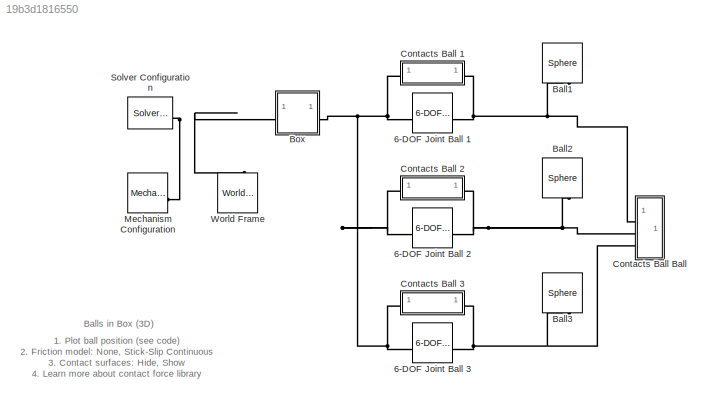
MODEL slx_19b3d1816550
KIND model
CONFIG AbsTol = 1e-5
CONFIG EnableMultiTasking = on
CONFIG FixedStep = auto
CONFIG MaxStep = 1e-2
CONFIG MinStep = auto
CONFIG RelTol = 1e-4
CONFIG SampleTimeConstraint = Unconstrained
CONFIG SolverName = ode23t
CONFIG StartFcn = tic;
CONFIG StartTime = 0.0
CONFIG StopFcn = Elapsed_Sim_Time = toc;\ndisp(['Elapsed Sim Time = ' num2str(Elapsed_Sim_Time)]);\n
CONFIG StopTime = 20
WORKSPACE source: MATLAB code (in-file)
WORKSPACE code: box.length = 8;
WORKSPACE code: box.width = 6;
WORKSPACE code: box.height = 4;
WORKSPACE code: box.wall_thickness = 0.005;
WORKSPACE code: ball.radius = 0.5;
WORKSPACE code: ball.density = 1000;
BLOCK [Reference] 6-DOF Joint Ball 1  REF=sm_lib/Joints/6-DOF Joint
  SourceBlock = sm_lib/Joints/6-DOF Joint
  SourceType = 6-DOF Joint
BLOCK [Reference] 6-DOF Joint Ball 2  REF=sm_lib/Joints/6-DOF Joint
  SourceBlock = sm_lib/Joints/6-DOF Joint
  SourceType = 6-DOF Joint
BLOCK [Reference] 6-DOF Joint Ball 3  REF=sm_lib/Joints/6-DOF Joint
  SourceBlock = sm_lib/Joints/6-DOF Joint
  SourceType = 6-DOF Joint
BLOCK [Reference] Ball1  REF=Parts_Lib/Sphere
  NameLocation = left
  SourceBlock = Parts_Lib/Sphere
  SourceType = Sphere with Markings
  Tag = CustomStyle
BLOCK [Reference] Ball2  REF=Parts_Lib/Sphere
  NameLocation = left
  SourceBlock = Parts_Lib/Sphere
  SourceType = Sphere with Markings
  Tag = CustomStyle
BLOCK [Reference] Ball3  REF=Parts_Lib/Sphere
  NameLocation = left
  SourceBlock = Parts_Lib/Sphere
  SourceType = Sphere with Markings
  Tag = CustomStyle
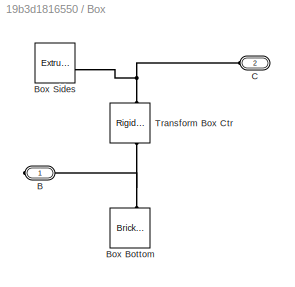
BLOCK [SubSystem] Box
  Tag = CustomStyle
BLOCK [PMIOPort] Box/B
  NameLocation = top
  Side = Right
BLOCK [Reference] Box/Box Bottom  REF=sm_lib/Body Elements/Brick Solid
  NameLocation = right
  SourceBlock = sm_lib/Body Elements/Brick Solid
  SourceType = Brick Solid
BLOCK [Reference] Box/Box Sides  REF=sm_lib/Body Elements/Extruded Solid
  SourceBlock = sm_lib/Body Elements/Extruded Solid
  SourceType = Extruded Solid
BLOCK [PMIOPort] Box/C
  NameLocation = top
  Port = 2
  Side = Left
BLOCK [Reference] Box/Transform Box Ctr  REF=sm_lib/Frames and
Transforms/Rigid
Transform
  NameLocation = right
  SourceBlock = sm_lib/Frames and\nTransforms/Rigid\nTransform
  SourceType = Rigid\nTransform
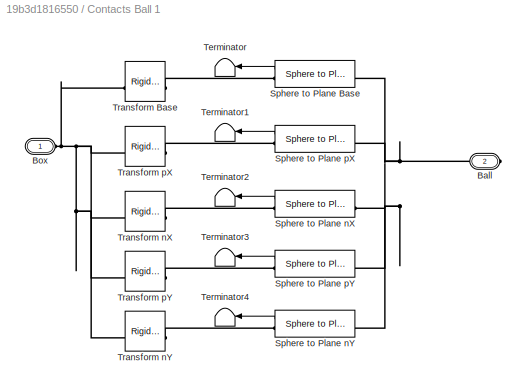
BLOCK [SubSystem] Contacts Ball 1
  NameLocation = top
BLOCK [PMIOPort] Contacts Ball 1/Ball
  Port = 2
  Side = Right
BLOCK [PMIOPort] Contacts Ball 1/Box
  Side = Left
BLOCK [Reference] Contacts Ball 1/Sphere to Plane Base  REF=Contact_Forces_Lib/3D/Sphere to Plane Force
  SourceBlock = Contact_Forces_Lib/3D/Sphere to Plane Force
  SourceProductName = Simscape Multibody Contact Forces Library
  SourceType = Sphere to Plane Force
BLOCK [Reference] Contacts Ball 1/Sphere to Plane nX  REF=Contact_Forces_Lib/3D/Sphere to Plane Force
  SourceBlock = Contact_Forces_Lib/3D/Sphere to Plane Force
  SourceProductName = Simscape Multibody Contact Forces Library
  SourceType = Sphere to Plane Force
BLOCK [Reference] Contacts Ball 1/Sphere to Plane nY  REF=Contact_Forces_Lib/3D/Sphere to Plane Force
  SourceBlock = Contact_Forces_Lib/3D/Sphere to Plane Force
  SourceProductName = Simscape Multibody Contact Forces Library
  SourceType = Sphere to Plane Force
BLOCK [Reference] Contacts Ball 1/Sphere to Plane pX  REF=Contact_Forces_Lib/3D/Sphere to Plane Force
  SourceBlock = Contact_Forces_Lib/3D/Sphere to Plane Force
  SourceProductName = Simscape Multibody Contact Forces Library
  SourceType = Sphere to Plane Force
BLOCK [Reference] Contacts Ball 1/Sphere to Plane pY  REF=Contact_Forces_Lib/3D/Sphere to Plane Force
  SourceBlock = Contact_Forces_Lib/3D/Sphere to Plane Force
  SourceProductName = Simscape Multibody Contact Forces Library
  SourceType = Sphere to Plane Force
BLOCK [Terminator] Contacts Ball 1/Terminator
BLOCK [Terminator] Contacts Ball 1/Terminator1
BLOCK [Terminator] Contacts Ball 1/Terminator2
BLOCK [Terminator] Contacts Ball 1/Terminator3
BLOCK [Terminator] Contacts Ball 1/Terminator4
BLOCK [Reference] Contacts Ball 1/Transform Base  REF=sm_lib/Frames and
Transforms/Rigid
Transform
  SourceBlock = sm_lib/Frames and\nTransforms/Rigid\nTransform
  SourceType = Rigid\nTransform
BLOCK [Reference] Contacts Ball 1/Transform nX  REF=sm_lib/Frames and
Transforms/Rigid
Transform
  SourceBlock = sm_lib/Frames and\nTransforms/Rigid\nTransform
  SourceType = Rigid\nTransform
BLOCK [Reference] Contacts Ball 1/Transform nY  REF=sm_lib/Frames and
Transforms/Rigid
Transform
  SourceBlock = sm_lib/Frames and\nTransforms/Rigid\nTransform
  SourceType = Rigid\nTransform
BLOCK [Reference] Contacts Ball 1/Transform pX  REF=sm_lib/Frames and
Transforms/Rigid
Transform
  SourceBlock = sm_lib/Frames and\nTransforms/Rigid\nTransform
  SourceType = Rigid\nTransform
BLOCK [Reference] Contacts Ball 1/Transform pY  REF=sm_lib/Frames and
Transforms/Rigid
Transform
  SourceBlock = sm_lib/Frames and\nTransforms/Rigid\nTransform
  SourceType = Rigid\nTransform
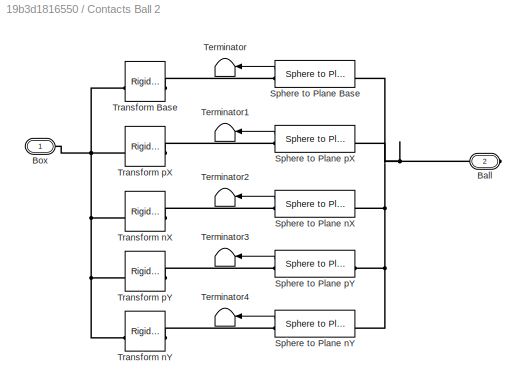
BLOCK [SubSystem] Contacts Ball 2
  NameLocation = top
BLOCK [PMIOPort] Contacts Ball 2/Ball
  Port = 2
  Side = Right
BLOCK [PMIOPort] Contacts Ball 2/Box
  Side = Left
BLOCK [Reference] Contacts Ball 2/Sphere to Plane Base  REF=Contact_Forces_Lib/3D/Sphere to Plane Force
  SourceBlock = Contact_Forces_Lib/3D/Sphere to Plane Force
  SourceProductName = Simscape Multibody Contact Forces Library
  SourceType = Sphere to Plane Force
BLOCK [Reference] Contacts Ball 2/Sphere to Plane nX  REF=Contact_Forces_Lib/3D/Sphere to Plane Force
  SourceBlock = Contact_Forces_Lib/3D/Sphere to Plane Force
  SourceProductName = Simscape Multibody Contact Forces Library
  SourceType = Sphere to Plane Force
BLOCK [Reference] Contacts Ball 2/Sphere to Plane nY  REF=Contact_Forces_Lib/3D/Sphere to Plane Force
  SourceBlock = Contact_Forces_Lib/3D/Sphere to Plane Force
  SourceProductName = Simscape Multibody Contact Forces Library
  SourceType = Sphere to Plane Force
BLOCK [Reference] Contacts Ball 2/Sphere to Plane pX  REF=Contact_Forces_Lib/3D/Sphere to Plane Force
  SourceBlock = Contact_Forces_Lib/3D/Sphere to Plane Force
  SourceProductName = Simscape Multibody Contact Forces Library
  SourceType = Sphere to Plane Force
BLOCK [Reference] Contacts Ball 2/Sphere to Plane pY  REF=Contact_Forces_Lib/3D/Sphere to Plane Force
  SourceBlock = Contact_Forces_Lib/3D/Sphere to Plane Force
  SourceProductName = Simscape Multibody Contact Forces Library
  SourceType = Sphere to Plane Force
BLOCK [Terminator] Contacts Ball 2/Terminator
BLOCK [Terminator] Contacts Ball 2/Terminator1
BLOCK [Terminator] Contacts Ball 2/Terminator2
BLOCK [Terminator] Contacts Ball 2/Terminator3
BLOCK [Terminator] Contacts Ball 2/Terminator4
BLOCK [Reference] Contacts Ball 2/Transform Base  REF=sm_lib/Frames and
Transforms/Rigid
Transform
  SourceBlock = sm_lib/Frames and\nTransforms/Rigid\nTransform
  SourceType = Rigid\nTransform
BLOCK [Reference] Contacts Ball 2/Transform nX  REF=sm_lib/Frames and
Transforms/Rigid
Transform
  SourceBlock = sm_lib/Frames and\nTransforms/Rigid\nTransform
  SourceType = Rigid\nTransform
BLOCK [Reference] Contacts Ball 2/Transform nY  REF=sm_lib/Frames and
Transforms/Rigid
Transform
  SourceBlock = sm_lib/Frames and\nTransforms/Rigid\nTransform
  SourceType = Rigid\nTransform
BLOCK [Reference] Contacts Ball 2/Transform pX  REF=sm_lib/Frames and
Transforms/Rigid
Transform
  SourceBlock = sm_lib/Frames and\nTransforms/Rigid\nTransform
  SourceType = Rigid\nTransform
BLOCK [Reference] Contacts Ball 2/Transform pY  REF=sm_lib/Frames and
Transforms/Rigid
Transform
  SourceBlock = sm_lib/Frames and\nTransforms/Rigid\nTransform
  SourceType = Rigid\nTransform
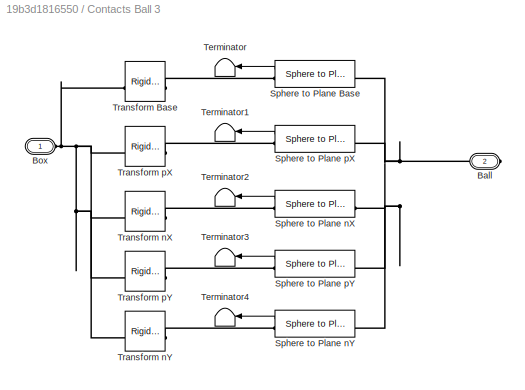
BLOCK [SubSystem] Contacts Ball 3
  NameLocation = top
BLOCK [PMIOPort] Contacts Ball 3/Ball
  Port = 2
  Side = Right
BLOCK [PMIOPort] Contacts Ball 3/Box
  Side = Left
BLOCK [Reference] Contacts Ball 3/Sphere to Plane Base  REF=Contact_Forces_Lib/3D/Sphere to Plane Force
  SourceBlock = Contact_Forces_Lib/3D/Sphere to Plane Force
  SourceProductName = Simscape Multibody Contact Forces Library
  SourceType = Sphere to Plane Force
BLOCK [Reference] Contacts Ball 3/Sphere to Plane nX  REF=Contact_Forces_Lib/3D/Sphere to Plane Force
  SourceBlock = Contact_Forces_Lib/3D/Sphere to Plane Force
  SourceProductName = Simscape Multibody Contact Forces Library
  SourceType = Sphere to Plane Force
BLOCK [Reference] Contacts Ball 3/Sphere to Plane nY  REF=Contact_Forces_Lib/3D/Sphere to Plane Force
  SourceBlock = Contact_Forces_Lib/3D/Sphere to Plane Force
  SourceProductName = Simscape Multibody Contact Forces Library
  SourceType = Sphere to Plane Force
BLOCK [Reference] Contacts Ball 3/Sphere to Plane pX  REF=Contact_Forces_Lib/3D/Sphere to Plane Force
  SourceBlock = Contact_Forces_Lib/3D/Sphere to Plane Force
  SourceProductName = Simscape Multibody Contact Forces Library
  SourceType = Sphere to Plane Force
BLOCK [Reference] Contacts Ball 3/Sphere to Plane pY  REF=Contact_Forces_Lib/3D/Sphere to Plane Force
  SourceBlock = Contact_Forces_Lib/3D/Sphere to Plane Force
  SourceProductName = Simscape Multibody Contact Forces Library
  SourceType = Sphere to Plane Force
BLOCK [Terminator] Contacts Ball 3/Terminator
BLOCK [Terminator] Contacts Ball 3/Terminator1
BLOCK [Terminator] Contacts Ball 3/Terminator2
BLOCK [Terminator] Contacts Ball 3/Terminator3
BLOCK [Terminator] Contacts Ball 3/Terminator4
BLOCK [Reference] Contacts Ball 3/Transform Base  REF=sm_lib/Frames and
Transforms/Rigid
Transform
  SourceBlock = sm_lib/Frames and\nTransforms/Rigid\nTransform
  SourceType = Rigid\nTransform
BLOCK [Reference] Contacts Ball 3/Transform nX  REF=sm_lib/Frames and
Transforms/Rigid
Transform
  SourceBlock = sm_lib/Frames and\nTransforms/Rigid\nTransform
  SourceType = Rigid\nTransform
BLOCK [Reference] Contacts Ball 3/Transform nY  REF=sm_lib/Frames and
Transforms/Rigid
Transform
  SourceBlock = sm_lib/Frames and\nTransforms/Rigid\nTransform
  SourceType = Rigid\nTransform
BLOCK [Reference] Contacts Ball 3/Transform pX  REF=sm_lib/Frames and
Transforms/Rigid
Transform
  SourceBlock = sm_lib/Frames and\nTransforms/Rigid\nTransform
  SourceType = Rigid\nTransform
BLOCK [Reference] Contacts Ball 3/Transform pY  REF=sm_lib/Frames and
Transforms/Rigid
Transform
  SourceBlock = sm_lib/Frames and\nTransforms/Rigid\nTransform
  SourceType = Rigid\nTransform
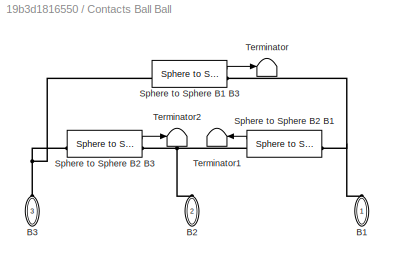
BLOCK [SubSystem] Contacts Ball Ball
BLOCK [PMIOPort] Contacts Ball Ball/B1
  NameLocation = right
  Side = Left
BLOCK [PMIOPort] Contacts Ball Ball/B2
  NameLocation = right
  Port = 2
  Side = Left
BLOCK [PMIOPort] Contacts Ball Ball/B3
  NameLocation = right
  Port = 3
  Side = Left
BLOCK [Reference] Contacts Ball Ball/Sphere to Sphere B1 B3  REF=Contact_Forces_Lib/3D/Sphere to Sphere Force
  SourceBlock = Contact_Forces_Lib/3D/Sphere to Sphere Force
  SourceProductName = Simscape Multibody Contact Forces Library
  SourceType = Sphere to Sphere Force
BLOCK [Reference] Contacts Ball Ball/Sphere to Sphere B2 B1  REF=Contact_Forces_Lib/3D/Sphere to Sphere Force
  SourceBlock = Contact_Forces_Lib/3D/Sphere to Sphere Force
  SourceProductName = Simscape Multibody Contact Forces Library
  SourceType = Sphere to Sphere Force
BLOCK [Reference] Contacts Ball Ball/Sphere to Sphere B2 B3  REF=Contact_Forces_Lib/3D/Sphere to Sphere Force
  SourceBlock = Contact_Forces_Lib/3D/Sphere to Sphere Force
  SourceProductName = Simscape Multibody Contact Forces Library
  SourceType = Sphere to Sphere Force
BLOCK [Terminator] Contacts Ball Ball/Terminator
BLOCK [Terminator] Contacts Ball Ball/Terminator1
BLOCK [Terminator] Contacts Ball Ball/Terminator2
BLOCK [Reference] Mechanism Configuration  REF=sm_lib/Utilities/Mechanism
Configuration
  SourceBlock = sm_lib/Utilities/Mechanism\nConfiguration
  SourceType = Mechanism\nConfiguration
BLOCK [Reference] Solver Configuration  REF=nesl_utility/Solver
Configuration
  SourceBlock = nesl_utility/Solver\nConfiguration
  SourceType = Solver\nConfiguration
BLOCK [Reference] World Frame  REF=sm_lib/Frames and
Transforms/World Frame
  NameLocation = right
  SourceBlock = sm_lib/Frames and\nTransforms/World Frame
  SourceType = World Frame
ANNOTATION (root): 1. Plot ball position ( see code ) 2. Friction model: None , Stick-Slip Continuous 3. Contact surfaces: Hide , Show 4. Learn more about contact force library
ANNOTATION (root): Balls in Box (3D)
LINE Contacts Ball 1/Sphere to Plane Base:1 -> Contacts Ball 1/Terminator:1
LINE Contacts Ball 1/Sphere to Plane nX:1 -> Contacts Ball 1/Terminator2:1
LINE Contacts Ball 1/Sphere to Plane nY:1 -> Contacts Ball 1/Terminator4:1
LINE Contacts Ball 1/Sphere to Plane pX:1 -> Contacts Ball 1/Terminator1:1
LINE Contacts Ball 1/Sphere to Plane pY:1 -> Contacts Ball 1/Terminator3:1
LINE Contacts Ball 2/Sphere to Plane Base:1 -> Contacts Ball 2/Terminator:1
LINE Contacts Ball 2/Sphere to Plane nX:1 -> Contacts Ball 2/Terminator2:1
LINE Contacts Ball 2/Sphere to Plane nY:1 -> Contacts Ball 2/Terminator4:1
LINE Contacts Ball 2/Sphere to Plane pX:1 -> Contacts Ball 2/Terminator1:1
LINE Contacts Ball 2/Sphere to Plane pY:1 -> Contacts Ball 2/Terminator3:1
LINE Contacts Ball 3/Sphere to Plane Base:1 -> Contacts Ball 3/Terminator:1
LINE Contacts Ball 3/Sphere to Plane nX:1 -> Contacts Ball 3/Terminator2:1
LINE Contacts Ball 3/Sphere to Plane nY:1 -> Contacts Ball 3/Terminator4:1
LINE Contacts Ball 3/Sphere to Plane pX:1 -> Contacts Ball 3/Terminator1:1
LINE Contacts Ball 3/Sphere to Plane pY:1 -> Contacts Ball 3/Terminator3:1
LINE Contacts Ball Ball/Sphere to Sphere B1 B3:1 -> Contacts Ball Ball/Terminator:1
LINE Contacts Ball Ball/Sphere to Sphere B2 B1:1 -> Contacts Ball Ball/Terminator1:1
LINE Contacts Ball Ball/Sphere to Sphere B2 B3:1 -> Contacts Ball Ball/Terminator2:1
PNET net1: 6-DOF Joint Ball 1:LConn1 -- 6-DOF Joint Ball 2:LConn1 -- 6-DOF Joint Ball 3:LConn1 -- Box:LConn1 -- Contacts Ball 1:LConn1 -- Contacts Ball 2:LConn1 -- Contacts Ball 3:LConn1
PNET net2: 6-DOF Joint Ball 1:RConn1 -- Ball1:LConn1 -- Contacts Ball 1:RConn1 -- Contacts Ball Ball:LConn1
PNET net3: 6-DOF Joint Ball 2:RConn1 -- Ball2:LConn1 -- Contacts Ball 2:RConn1 -- Contacts Ball Ball:LConn2
PNET net4: 6-DOF Joint Ball 3:RConn1 -- Ball3:LConn1 -- Contacts Ball 3:RConn1 -- Contacts Ball Ball:LConn3
PNET net5: Box/B:RConn1 -- Box/Box Bottom:RConn1 -- Box/Transform Box Ctr:LConn1
PNET net6: Box/Box Sides:RConn1 -- Box/C:RConn1 -- Box/Transform Box Ctr:RConn1
PNET net7: Box:RConn1 -- Mechanism Configuration:RConn1 -- Solver Configuration:RConn1 -- World Frame:RConn1
PNET net8: Contacts Ball 1/Ball:RConn1 -- Contacts Ball 1/Sphere to Plane Base:LConn1 -- Contacts Ball 1/Sphere to Plane nX:LConn1 -- Contacts Ball 1/Sphere to Plane nY:LConn1 -- Contacts Ball 1/Sphere to Plane pX:LConn1 -- Contacts Ball 1/Sphere to Plane pY:LConn1
PNET net9: Contacts Ball 1/Box:RConn1 -- Contacts Ball 1/Transform Base:LConn1 -- Contacts Ball 1/Transform nX:LConn1 -- Contacts Ball 1/Transform nY:LConn1 -- Contacts Ball 1/Transform pX:LConn1 -- Contacts Ball 1/Transform pY:LConn1
PLINE Contacts Ball 1/Sphere to Plane Base:RConn1 -- Contacts Ball 1/Transform Base:RConn1
PLINE Contacts Ball 1/Sphere to Plane nX:RConn1 -- Contacts Ball 1/Transform nX:RConn1
PLINE Contacts Ball 1/Sphere to Plane nY:RConn1 -- Contacts Ball 1/Transform nY:RConn1
PLINE Contacts Ball 1/Sphere to Plane pX:RConn1 -- Contacts Ball 1/Transform pX:RConn1
PLINE Contacts Ball 1/Sphere to Plane pY:RConn1 -- Contacts Ball 1/Transform pY:RConn1
PNET net10: Contacts Ball 2/Ball:RConn1 -- Contacts Ball 2/Sphere to Plane Base:LConn1 -- Contacts Ball 2/Sphere to Plane nX:LConn1 -- Contacts Ball 2/Sphere to Plane nY:LConn1 -- Contacts Ball 2/Sphere to Plane pX:LConn1 -- Contacts Ball 2/Sphere to Plane pY:LConn1
PNET net11: Contacts Ball 2/Box:RConn1 -- Contacts Ball 2/Transform Base:LConn1 -- Contacts Ball 2/Transform nX:LConn1 -- Contacts Ball 2/Transform nY:LConn1 -- Contacts Ball 2/Transform pX:LConn1 -- Contacts Ball 2/Transform pY:LConn1
PLINE Contacts Ball 2/Sphere to Plane Base:RConn1 -- Contacts Ball 2/Transform Base:RConn1
PLINE Contacts Ball 2/Sphere to Plane nX:RConn1 -- Contacts Ball 2/Transform nX:RConn1
PLINE Contacts Ball 2/Sphere to Plane nY:RConn1 -- Contacts Ball 2/Transform nY:RConn1
PLINE Contacts Ball 2/Sphere to Plane pX:RConn1 -- Contacts Ball 2/Transform pX:RConn1
PLINE Contacts Ball 2/Sphere to Plane pY:RConn1 -- Contacts Ball 2/Transform pY:RConn1
PNET net12: Contacts Ball 3/Ball:RConn1 -- Contacts Ball 3/Sphere to Plane Base:LConn1 -- Contacts Ball 3/Sphere to Plane nX:LConn1 -- Contacts Ball 3/Sphere to Plane nY:LConn1 -- Contacts Ball 3/Sphere to Plane pX:LConn1 -- Contacts Ball 3/Sphere to Plane pY:LConn1
PNET net13: Contacts Ball 3/Box:RConn1 -- Contacts Ball 3/Transform Base:LConn1 -- Contacts Ball 3/Transform nX:LConn1 -- Contacts Ball 3/Transform nY:LConn1 -- Contacts Ball 3/Transform pX:LConn1 -- Contacts Ball 3/Transform pY:LConn1
PLINE Contacts Ball 3/Sphere to Plane Base:RConn1 -- Contacts Ball 3/Transform Base:RConn1
PLINE Contacts Ball 3/Sphere to Plane nX:RConn1 -- Contacts Ball 3/Transform nX:RConn1
PLINE Contacts Ball 3/Sphere to Plane nY:RConn1 -- Contacts Ball 3/Transform nY:RConn1
PLINE Contacts Ball 3/Sphere to Plane pX:RConn1 -- Contacts Ball 3/Transform pX:RConn1
PLINE Contacts Ball 3/Sphere to Plane pY:RConn1 -- Contacts Ball 3/Transform pY:RConn1
PNET net14: Contacts Ball Ball/B1:RConn1 -- Contacts Ball Ball/Sphere to Sphere B1 B3:RConn1 -- Contacts Ball Ball/Sphere to Sphere B2 B1:LConn1
PNET net15: Contacts Ball Ball/B2:RConn1 -- Contacts Ball Ball/Sphere to Sphere B2 B1:RConn1 -- Contacts Ball Ball/Sphere to Sphere B2 B3:RConn1
PNET net16: Contacts Ball Ball/B3:RConn1 -- Contacts Ball Ball/Sphere to Sphere B1 B3:LConn1 -- Contacts Ball Ball/Sphere to Sphere B2 B3:LConn1
note: PNET lines group multi-terminal physical nets as a canonical sorted terminal list (undirected conserving connections); 2-terminal nets keep the pairwise PLINE form
